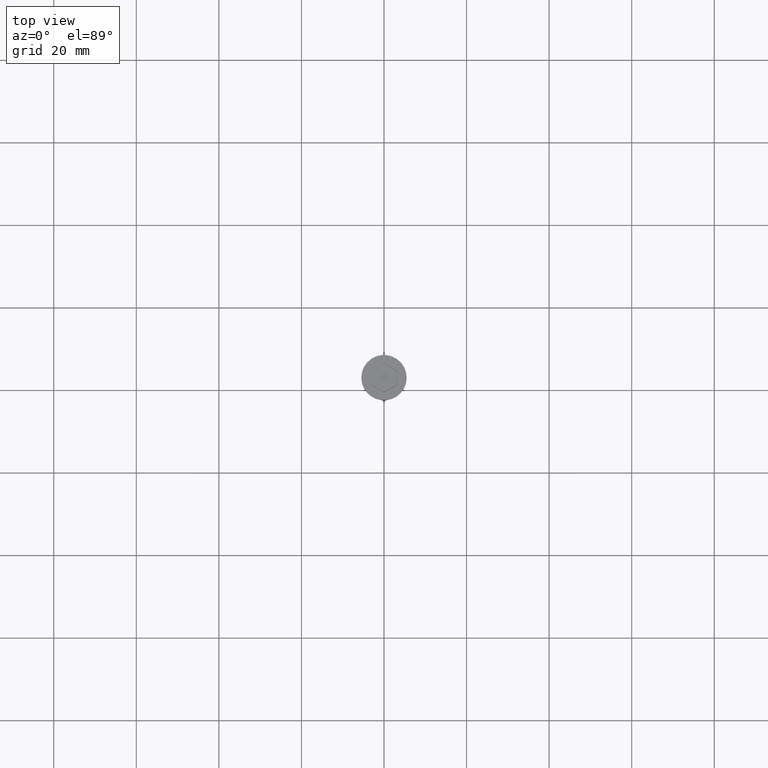
[diagram: clean part render]
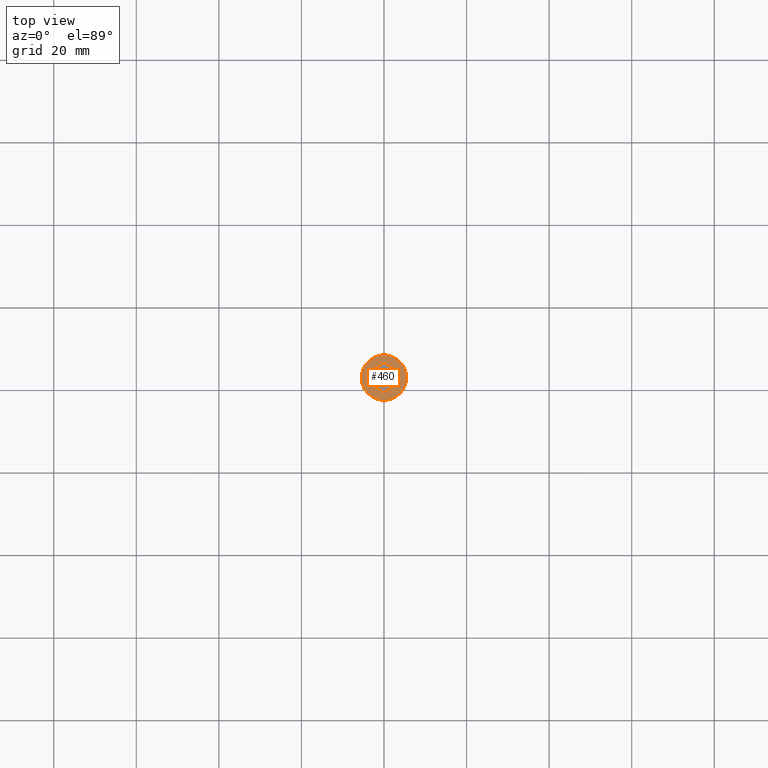
[diagram: same view with one face highlighted and labeled with its STEP entity id]
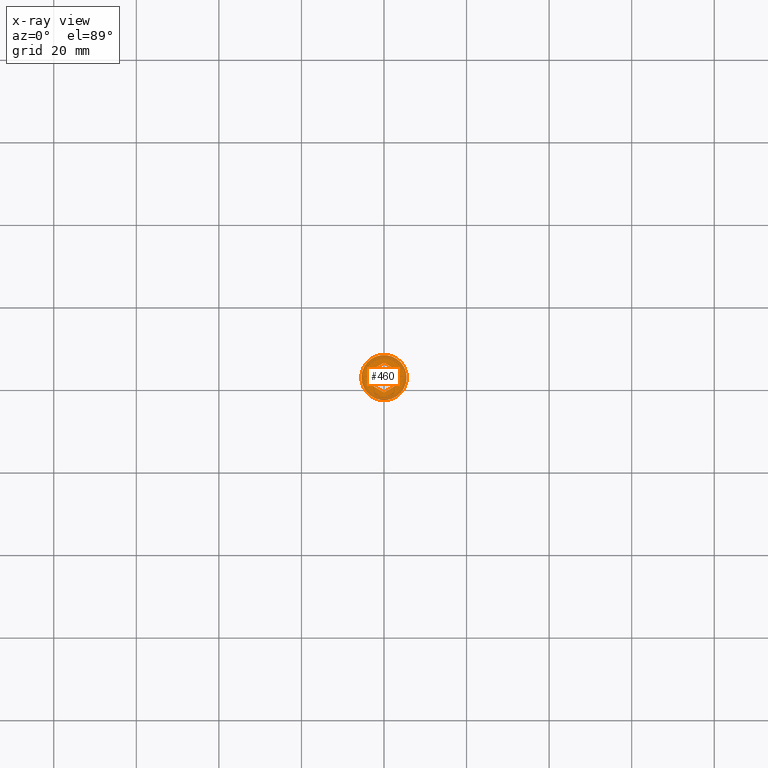
[diagram: x-ray of the same camera — body ghosted, the highlighted face saturated]
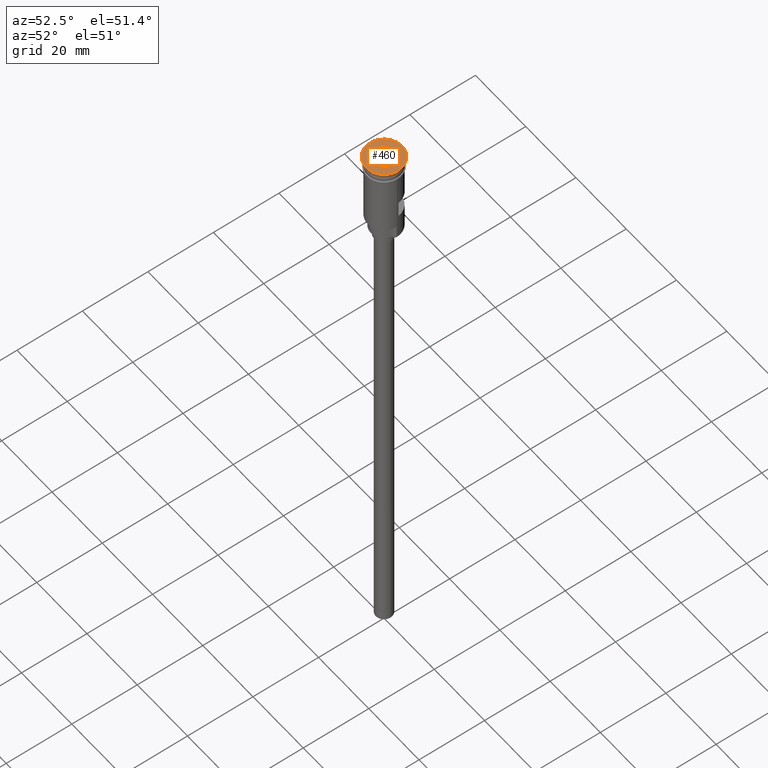
[diagram: same view with one face highlighted and labeled with its STEP entity id]
A machine part, top view. The second image highlights one B-rep face of the part: STEP entity #460.
The next image is the same camera in x-ray: the body ghosted, the highlighted face saturated — about 0% of this face is hidden behind the body in this view.
A second angle (auxiliary view) of the same face is appended — the face is thin or edge-on in the first view.
In plain terms, the highlighted planar face has unit normal (0, -0, 1).
Its self-contained STEP definition (entity closure, byte-faithful):
#5 = CARTESIAN_POINT ( 'NONE',  ( 3.049999999999991829, 1.818653347947307708, 0.000000000000000000 ) ) ;
#10 = VERTEX_POINT ( 'NONE', #1490 ) ;
#40 = CIRCLE ( 'NONE', #1487, 5.500000000000000000 ) ;
#57 = CARTESIAN_POINT ( 'NONE',  ( 5.500000000000000000, 0.000000000000000000, 0.000000000000000000 ) ) ;
#61 = VECTOR ( 'NONE', #307, 1000.000000000000000 ) ;
#66 = VERTEX_POINT ( 'NONE', #536 ) ;
#102 = EDGE_LOOP ( 'NONE', ( #897, #1117 ) ) ;
#123 = ORIENTED_EDGE ( 'NONE', *, *, #1405, .T. ) ;
#139 = DIRECTION ( 'NONE',  ( -0.8660254037844385966, -0.5000000000000001110, 0.000000000000000000 ) ) ;
#166 = DIRECTION ( 'NONE',  ( -1.251928832280966188E-16, -1.000000000000000000, 0.000000000000000000 ) ) ;
#173 = LINE ( 'NONE', #664, #61 ) ;
#265 = CARTESIAN_POINT ( 'NONE',  ( 0.000000000000000000, 0.000000000000000000, 0.000000000000000000 ) ) ;
#266 = EDGE_CURVE ( 'NONE', #979, #823, #173, .T. ) ;
#275 = DIRECTION ( 'NONE',  ( 0.8660254037844388186, -0.4999999999999997780, 0.000000000000000000 ) ) ;
#306 = PLANE ( 'NONE',  #1202 ) ;
#307 = DIRECTION ( 'NONE',  ( 0.000000000000000000, 1.000000000000000000, 0.000000000000000000 ) ) ;
#315 = VECTOR ( 'NONE', #1350, 1000.000000000000000 ) ;
#351 = EDGE_CURVE ( 'NONE', #617, #10, #1603, .T. ) ;
#382 = CARTESIAN_POINT ( 'NONE',  ( -0.04999999999999187039, 3.550704155516183125, 0.000000000000000000 ) ) ;
#389 = LINE ( 'NONE', #1605, #520 ) ;
#402 = DIRECTION ( 'NONE',  ( 1.000000000000000000, 0.000000000000000000, 0.000000000000000000 ) ) ;
#404 = ORIENTED_EDGE ( 'NONE', *, *, #266, .T. ) ;
#415 = VECTOR ( 'NONE', #275, 1000.000000000000114 ) ;
#434 = ORIENTED_EDGE ( 'NONE', *, *, #1163, .T. ) ;
#460 = ADVANCED_FACE ( 'NONE', ( #1032, #1398 ), #306, .T. ) ;
#501 = CARTESIAN_POINT ( 'NONE',  ( -3.099999999999983213, 1.789785834487829908, 0.000000000000000000 ) ) ;
#520 = VECTOR ( 'NONE', #139, 1000.000000000000114 ) ;
#536 = CARTESIAN_POINT ( 'NONE',  ( 6.103073414120078086E-16, 3.579571668975660259, 0.000000000000000000 ) ) ;
#557 = EDGE_CURVE ( 'NONE', #970, #979, #616, .T. ) ;
#560 = CARTESIAN_POINT ( 'NONE',  ( 0.000000000000000000, 0.000000000000000000, 0.000000000000000000 ) ) ;
#616 = LINE ( 'NONE', #837, #846 ) ;
#617 = VERTEX_POINT ( 'NONE', #1096 ) ;
#629 = CARTESIAN_POINT ( 'NONE',  ( 0.000000000000000000, 0.000000000000000000, 0.000000000000000000 ) ) ;
#664 = CARTESIAN_POINT ( 'NONE',  ( -3.099999999999983213, 1.732050807568876971, 0.000000000000000000 ) ) ;
#745 = ORIENTED_EDGE ( 'NONE', *, *, #351, .T. ) ;
#823 = VERTEX_POINT ( 'NONE', #501 ) ;
#834 = DIRECTION ( 'NONE',  ( -0.000000000000000000, -0.000000000000000000, 1.000000000000000000 ) ) ;
#837 = CARTESIAN_POINT ( 'NONE',  ( -3.049999999999991385, -1.818653347947305932, 0.000000000000000000 ) ) ;
#846 = VECTOR ( 'NONE', #853, 1000.000000000000000 ) ;
#853 = DIRECTION ( 'NONE',  ( -0.8660254037844387076, 0.4999999999999998335, 0.000000000000000000 ) ) ;
#897 = ORIENTED_EDGE ( 'NONE', *, *, #1168, .T. ) ;
#906 = VERTEX_POINT ( 'NONE', #1591 ) ;
#924 = DIRECTION ( 'NONE',  ( 1.000000000000000000, 0.000000000000000000, 0.000000000000000000 ) ) ;
#970 = VERTEX_POINT ( 'NONE', #1252 ) ;
#979 = VERTEX_POINT ( 'NONE', #1364 ) ;
#1032 = FACE_BOUND ( 'NONE', #1280, .T. ) ;
#1074 = VERTEX_POINT ( 'NONE', #57 ) ;
#1096 = CARTESIAN_POINT ( 'NONE',  ( 3.099999999999983213, 1.789785834487831462, 0.000000000000000000 ) ) ;
#1110 = ORIENTED_EDGE ( 'NONE', *, *, #557, .T. ) ;
#1114 = ORIENTED_EDGE ( 'NONE', *, *, #1221, .T. ) ;
#1117 = ORIENTED_EDGE ( 'NONE', *, *, #1218, .T. ) ;
#1163 = EDGE_CURVE ( 'NONE', #66, #617, #1486, .T. ) ;
#1168 = EDGE_CURVE ( 'NONE', #1074, #906, #1384, .T. ) ;
#1202 = AXIS2_PLACEMENT_3D ( 'NONE', #560, #1423, #924 ) ;
#1218 = EDGE_CURVE ( 'NONE', #906, #1074, #40, .T. ) ;
#1221 = EDGE_CURVE ( 'NONE', #823, #66, #1324, .T. ) ;
#1249 = DIRECTION ( 'NONE',  ( 1.000000000000000000, 0.000000000000000000, 0.000000000000000000 ) ) ;
#1252 = CARTESIAN_POINT ( 'NONE',  ( -1.958864205101993824E-16, -3.579571668975658927, 0.000000000000000000 ) ) ;
#1255 = VECTOR ( 'NONE', #166, 1000.000000000000000 ) ;
#1280 = EDGE_LOOP ( 'NONE', ( #404, #1114, #434, #745, #123, #1110 ) ) ;
#1324 = LINE ( 'NONE', #382, #315 ) ;
#1350 = DIRECTION ( 'NONE',  ( 0.8660254037844387076, 0.4999999999999998890, 0.000000000000000000 ) ) ;
#1359 = DIRECTION ( 'NONE',  ( -0.000000000000000000, -0.000000000000000000, 1.000000000000000000 ) ) ;
#1364 = CARTESIAN_POINT ( 'NONE',  ( -3.099999999999983213, -1.789785834487829241, 0.000000000000000000 ) ) ;
#1375 = CARTESIAN_POINT ( 'NONE',  ( 3.099999999999982769, -1.732050807568876083, 0.000000000000000000 ) ) ;
#1384 = CIRCLE ( 'NONE', #1461, 5.500000000000000000 ) ;
#1398 = FACE_OUTER_BOUND ( 'NONE', #102, .T. ) ;
#1405 = EDGE_CURVE ( 'NONE', #10, #970, #389, .T. ) ;
#1423 = DIRECTION ( 'NONE',  ( 0.000000000000000000, -0.000000000000000000, 1.000000000000000000 ) ) ;
#1461 = AXIS2_PLACEMENT_3D ( 'NONE', #265, #834, #1249 ) ;
#1486 = LINE ( 'NONE', #5, #415 ) ;
#1487 = AXIS2_PLACEMENT_3D ( 'NONE', #629, #1359, #402 ) ;
#1490 = CARTESIAN_POINT ( 'NONE',  ( 3.099999999999982769, -1.789785834487828353, 0.000000000000000000 ) ) ;
#1591 = CARTESIAN_POINT ( 'NONE',  ( -5.500000000000000000, 6.735557395310442023E-16, 0.000000000000000000 ) ) ;
#1603 = LINE ( 'NONE', #1375, #1255 ) ;
#1605 = CARTESIAN_POINT ( 'NONE',  ( 0.04999999999999141936, -3.550704155516182237, 0.000000000000000000 ) ) ;